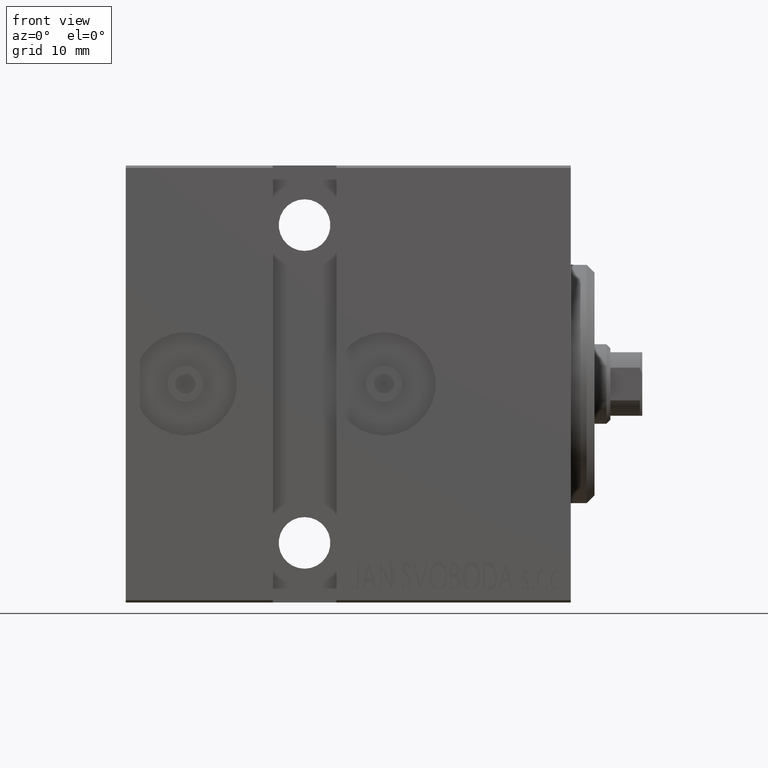
[diagram: clean part render]
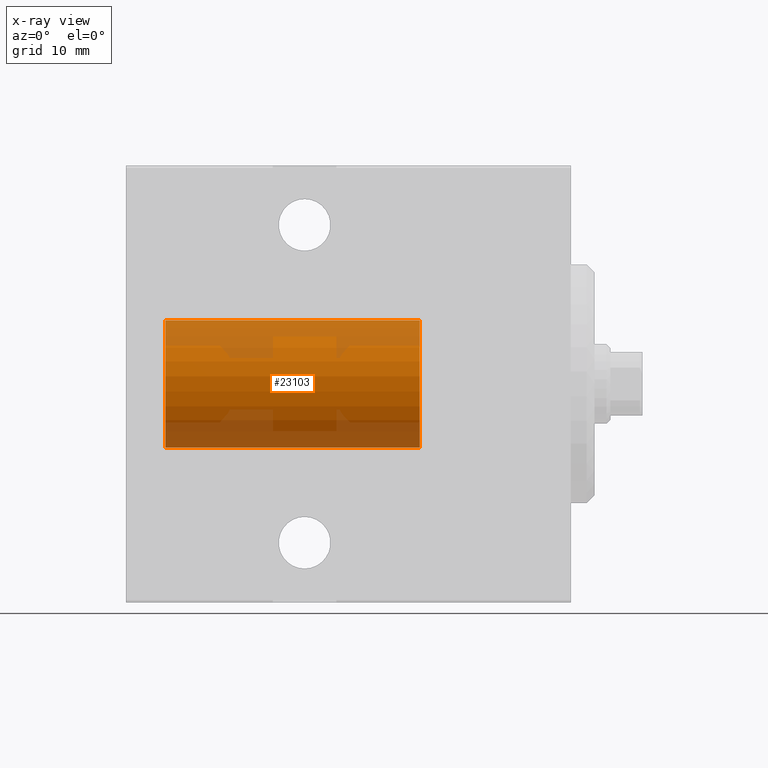
[diagram: x-ray — body ghosted, one internal face saturated and labeled with its STEP entity id]
A machine part, front view, then the same camera in x-ray: the body is ghosted and one INTERNAL B-rep face — a face not visible from any outside direction — is saturated and labeled: STEP entity #23103.
In plain terms, the highlighted cylindrical surface (partial cylindrical patch) has radius 8 mm, axis along (-1, -0, 0).
Its self-contained STEP definition (entity closure, byte-faithful):
#2170 = CIRCLE ( 'NONE', #30627, 8.000000000000000000 ) ;
#2572 = LINE ( 'NONE', #38857, #3120 ) ;
#2769 = EDGE_LOOP ( 'NONE', ( #41554, #20673, #39007, #3570 ) ) ;
#3120 = VECTOR ( 'NONE', #15792, 1000.000000000000000 ) ;
#3454 = VERTEX_POINT ( 'NONE', #29328 ) ;
#3570 = ORIENTED_EDGE ( 'NONE', *, *, #31516, .T. ) ;
#5024 = EDGE_CURVE ( 'NONE', #3454, #9756, #25564, .T. ) ;
#5602 = CARTESIAN_POINT ( 'NONE',  ( -8.000000000000000000, 0.000000000000000000, 32.00000000000000000 ) ) ;
#6017 = DIRECTION ( 'NONE',  ( 1.000000000000000000, 0.000000000000000000, 0.000000000000000000 ) ) ;
#7682 = DIRECTION ( 'NONE',  ( -1.000000000000000000, 0.000000000000000000, 0.000000000000000000 ) ) ;
#7826 = EDGE_CURVE ( 'NONE', #26758, #19118, #2572, .T. ) ;
#9756 = VERTEX_POINT ( 'NONE', #21973 ) ;
#10658 = VECTOR ( 'NONE', #18615, 1000.000000000000000 ) ;
#12504 = CARTESIAN_POINT ( 'NONE',  ( 0.000000000000000000, 0.000000000000000000, 32.00000000000000000 ) ) ;
#13951 = CYLINDRICAL_SURFACE ( 'NONE', #26931, 8.000000000000000000 ) ;
#14478 = CARTESIAN_POINT ( 'NONE',  ( 8.000000000000000000, 9.797174393178825657E-16, 32.00000000000000000 ) ) ;
#15536 = CARTESIAN_POINT ( 'NONE',  ( 8.000000000000000000, 9.797174393178825657E-16, 0.000000000000000000 ) ) ;
#15792 = DIRECTION ( 'NONE',  ( -0.000000000000000000, -0.000000000000000000, -1.000000000000000000 ) ) ;
#18571 = AXIS2_PLACEMENT_3D ( 'NONE', #12504, #35773, #6017 ) ;
#18615 = DIRECTION ( 'NONE',  ( -0.000000000000000000, -0.000000000000000000, -1.000000000000000000 ) ) ;
#19118 = VERTEX_POINT ( 'NONE', #15536 ) ;
#20673 = ORIENTED_EDGE ( 'NONE', *, *, #41286, .F. ) ;
#21973 = CARTESIAN_POINT ( 'NONE',  ( -8.000000000000000000, 0.000000000000000000, 0.000000000000000000 ) ) ;
#23103 = ADVANCED_FACE ( 'NONE', ( #30040 ), #13951, .T. ) ;
#23304 = CARTESIAN_POINT ( 'NONE',  ( 0.000000000000000000, 0.000000000000000000, 32.00000000000000000 ) ) ;
#25564 = LINE ( 'NONE', #5602, #10658 ) ;
#25813 = CARTESIAN_POINT ( 'NONE',  ( 0.000000000000000000, 0.000000000000000000, 0.000000000000000000 ) ) ;
#26758 = VERTEX_POINT ( 'NONE', #14478 ) ;
#26931 = AXIS2_PLACEMENT_3D ( 'NONE', #23304, #37455, #7682 ) ;
#29328 = CARTESIAN_POINT ( 'NONE',  ( -8.000000000000000000, 0.000000000000000000, 32.00000000000000000 ) ) ;
#30040 = FACE_OUTER_BOUND ( 'NONE', #2769, .T. ) ;
#30627 = AXIS2_PLACEMENT_3D ( 'NONE', #25813, #39306, #39093 ) ;
#31516 = EDGE_CURVE ( 'NONE', #9756, #19118, #2170, .T. ) ;
#35773 = DIRECTION ( 'NONE',  ( 0.000000000000000000, 0.000000000000000000, 1.000000000000000000 ) ) ;
#37455 = DIRECTION ( 'NONE',  ( -0.000000000000000000, -0.000000000000000000, -1.000000000000000000 ) ) ;
#38857 = CARTESIAN_POINT ( 'NONE',  ( 8.000000000000000000, 9.797174393178825657E-16, 32.00000000000000000 ) ) ;
#39007 = ORIENTED_EDGE ( 'NONE', *, *, #5024, .T. ) ;
#39093 = DIRECTION ( 'NONE',  ( 1.000000000000000000, 0.000000000000000000, 0.000000000000000000 ) ) ;
#39306 = DIRECTION ( 'NONE',  ( 0.000000000000000000, 0.000000000000000000, 1.000000000000000000 ) ) ;
#40829 = CIRCLE ( 'NONE', #18571, 8.000000000000000000 ) ;
#41286 = EDGE_CURVE ( 'NONE', #3454, #26758, #40829, .T. ) ;
#41554 = ORIENTED_EDGE ( 'NONE', *, *, #7826, .F. ) ;